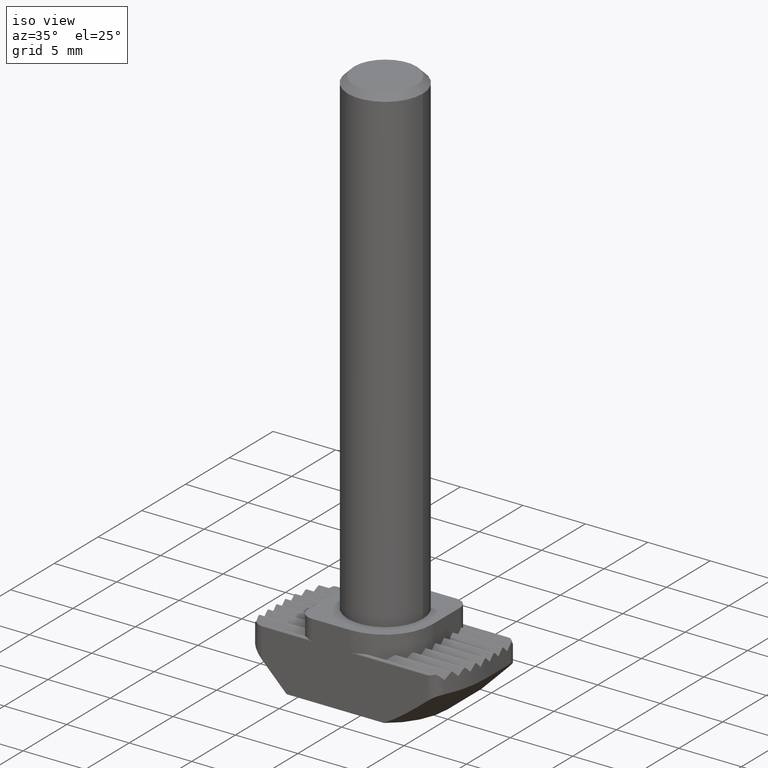
[diagram: clean part render]
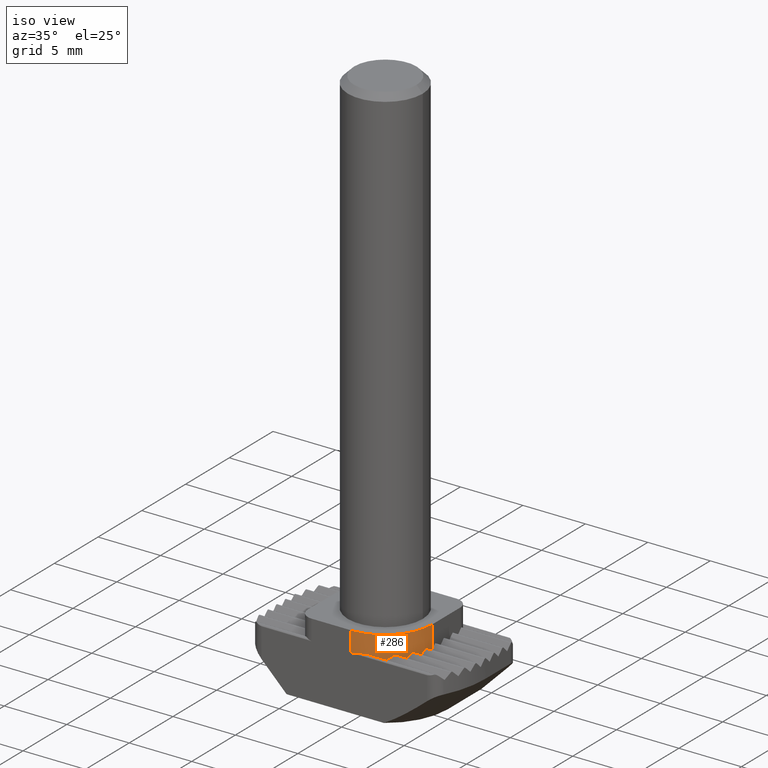
[diagram: same view with one face highlighted and labeled with its STEP entity id]
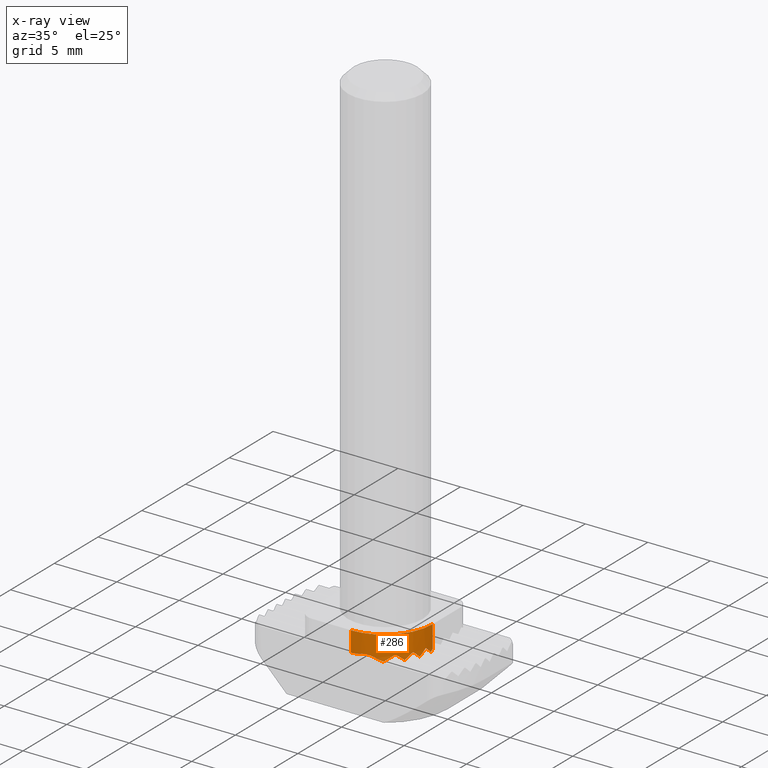
[diagram: x-ray of the same camera — body ghosted, the highlighted face saturated]
A machine part, iso view. The second image highlights one B-rep face of the part: STEP entity #286.
The next image is the same camera in x-ray: the body ghosted, the highlighted face saturated — about 0% of this face is hidden behind the body in this view.
In plain terms, the highlighted cylindrical surface (partial cylindrical patch) has radius 3.85 mm, axis along (0, 0, 1).
Its self-contained STEP definition (entity closure, byte-faithful):
#286=ADVANCED_FACE('NONE',(#584),#585,.T.);
#584=FACE_OUTER_BOUND('',#890,.T.);
#585=CYLINDRICAL_SURFACE('',#891,3.85);
#890=EDGE_LOOP('',(#1712,#1713,#1714,#1715,#1716,#1717,#1718,#1719,#1720,#1721,#1722,#1723,#1724,#1725,#1726,#1727,#1728,#1729,#1730,#1731,#1732));
#891=AXIS2_PLACEMENT_3D('',#1733,#1734,#1735);
#1712=ORIENTED_EDGE('',*,*,#2231,.T.);
#1713=ORIENTED_EDGE('',*,*,#2252,.T.);
#1714=ORIENTED_EDGE('',*,*,#2197,.T.);
#1715=ORIENTED_EDGE('',*,*,#2189,.T.);
#1716=ORIENTED_EDGE('',*,*,#1918,.T.);
#1717=ORIENTED_EDGE('',*,*,#2183,.T.);
#1718=ORIENTED_EDGE('',*,*,#2174,.T.);
#1719=ORIENTED_EDGE('',*,*,#2164,.T.);
#1720=ORIENTED_EDGE('',*,*,#1928,.T.);
#1721=ORIENTED_EDGE('',*,*,#2157,.T.);
#1722=ORIENTED_EDGE('',*,*,#2150,.T.);
#1723=ORIENTED_EDGE('',*,*,#2142,.T.);
#1724=ORIENTED_EDGE('',*,*,#1938,.T.);
#1725=ORIENTED_EDGE('',*,*,#2135,.T.);
#1726=ORIENTED_EDGE('',*,*,#2128,.T.);
#1727=ORIENTED_EDGE('',*,*,#2120,.T.);
#1728=ORIENTED_EDGE('',*,*,#1948,.T.);
#1729=ORIENTED_EDGE('',*,*,#2204,.T.);
#1730=ORIENTED_EDGE('',*,*,#2028,.T.);
#1731=ORIENTED_EDGE('',*,*,#2245,.F.);
#1732=ORIENTED_EDGE('',*,*,#2011,.F.);
#1733=CARTESIAN_POINT('',(0.150000000000001,-0.3,6.0));
#1734=DIRECTION('',(0.0,0.0,1.0));
#1735=DIRECTION('',(-1.0,0.0,0.0));
#1918=EDGE_CURVE('NONE',#2305,#2309,#2311,.T.);
#1928=EDGE_CURVE('NONE',#2323,#2327,#2329,.T.);
#1938=EDGE_CURVE('NONE',#2341,#2345,#2347,.T.);
#1948=EDGE_CURVE('NONE',#2359,#2363,#2365,.T.);
#2011=EDGE_CURVE('NONE',#2476,#2463,#2478,.T.);
#2028=EDGE_CURVE('NONE',#2505,#2502,#2506,.T.);
#2120=EDGE_CURVE('NONE',#2633,#2359,#2634,.T.);
#2128=EDGE_CURVE('NONE',#2645,#2633,#2646,.T.);
#2135=EDGE_CURVE('NONE',#2345,#2645,#2654,.T.);
#2142=EDGE_CURVE('NONE',#2663,#2341,#2664,.T.);
#2150=EDGE_CURVE('NONE',#2675,#2663,#2676,.T.);
#2157=EDGE_CURVE('NONE',#2327,#2675,#2684,.T.);
#2164=EDGE_CURVE('NONE',#2693,#2323,#2694,.T.);
#2174=EDGE_CURVE('NONE',#2709,#2693,#2710,.T.);
#2183=EDGE_CURVE('NONE',#2309,#2709,#2721,.T.);
#2189=EDGE_CURVE('NONE',#2729,#2305,#2730,.T.);
#2197=EDGE_CURVE('NONE',#2741,#2729,#2742,.T.);
#2204=EDGE_CURVE('NONE',#2363,#2505,#2750,.T.);
#2231=EDGE_CURVE('NONE',#2476,#2788,#2790,.T.);
#2245=EDGE_CURVE('NONE',#2463,#2502,#2811,.T.);
#2252=EDGE_CURVE('NONE',#2788,#2741,#2818,.T.);
#2305=VERTEX_POINT('',#2903);
#2309=VERTEX_POINT('NONE',#2913);
#2311=B_SPLINE_CURVE_WITH_KNOTS('',3,(#2916,#2917,#2918,#2919,#2920,#2921,#2922,#2923),.UNSPECIFIED.,.F.,.F.,(4,2,2,4),(0.000663049062288544,0.000931229714029556,0.00106532003990006,0.00119941036577057),.UNSPECIFIED.);
#2323=VERTEX_POINT('',#2947);
#2327=VERTEX_POINT('NONE',#2967);
#2329=B_SPLINE_CURVE_WITH_KNOTS('',3,(#2970,#2971,#2972,#2973,#2974,#2975),.UNSPECIFIED.,.F.,.F.,(4,2,4),(0.00027520329442408,0.000379549242735695,0.00048389519104731),.UNSPECIFIED.);
#2341=VERTEX_POINT('',#2989);
#2345=VERTEX_POINT('NONE',#3009);
#2347=B_SPLINE_CURVE_WITH_KNOTS('',3,(#3012,#3013,#3014,#3015,#3016,#3017,#3018,#3019,#3020,#3021,#3022,#3023,#3024,#3025,#3026,#3027,#3028,#3029,#3030),.UNSPECIFIED.,.F.,.F.,(4,3,3,3,3,3,4),(0.000245763360465609,0.000247398956771095,0.00028164607058281,0.000319721790797091,0.000360746231192919,0.00040217363261927,0.000416564972549524),.UNSPECIFIED.);
#2359=VERTEX_POINT('',#3044);
#2363=VERTEX_POINT('NONE',#3064);
#2365=B_SPLINE_CURVE_WITH_KNOTS('',3,(#3067,#3068,#3069,#3070,#3071,#3072,#3073,#3074,#3075,#3076,#3077,#3078,#3079,#3080,#3081,#3082,#3083,#3084,#3085),.UNSPECIFIED.,.F.,.F.,(4,3,3,3,3,3,4),(0.000236276250915171,0.000236802969481892,0.000270420936097206,0.00030470789615586,0.000339403168050225,0.000374079666317702,0.000394783939890724),.UNSPECIFIED.);
#2463=VERTEX_POINT('NONE',#3339);
#2476=VERTEX_POINT('NONE',#3355);
#2478=CIRCLE('',#3358,3.85);
#2502=VERTEX_POINT('NONE',#3410);
#2505=VERTEX_POINT('NONE',#3414);
#2506=(B_SPLINE_CURVE(3,(#3416,#3417,#3418,#3419),.UNSPECIFIED.,.F.,.F.)B_SPLINE_CURVE_WITH_KNOTS((4,4),(1.51882488192499,1.5707963267949),.UNSPECIFIED.)RATIONAL_B_SPLINE_CURVE((1.0,0.999774926742144,0.999774926742144,1.0))BOUNDED_CURVE()REPRESENTATION_ITEM('')GEOMETRIC_REPRESENTATION_ITEM()CURVE());
#2633=VERTEX_POINT('NONE',#3921);
#2634=B_SPLINE_CURVE_WITH_KNOTS('',3,(#3922,#3923,#3924,#3925,#3926,#3927,#3928,#3929,#3930,#3931,#3932,#3933,#3934,#3935,#3936,#3937,#3938,#3939,#3940),.UNSPECIFIED.,.F.,.F.,(4,3,3,3,3,3,4),(0.000236276250915171,0.000236802969481892,0.000270420936097206,0.00030470789615586,0.000339403168050225,0.000374079666317702,0.000394783939890724),.UNSPECIFIED.);
#2645=VERTEX_POINT('NONE',#3970);
#2646=(B_SPLINE_CURVE(3,(#3972,#3973,#3974,#3975),.UNSPECIFIED.,.F.,.F.)B_SPLINE_CURVE_WITH_KNOTS((4,4),(1.25382698562608,1.36925000424631),.UNSPECIFIED.)RATIONAL_B_SPLINE_CURVE((1.0,0.998890102002906,0.998890102002906,1.0))BOUNDED_CURVE()REPRESENTATION_ITEM('')GEOMETRIC_REPRESENTATION_ITEM()CURVE());
#2654=(B_SPLINE_CURVE(3,(#4003,#4004,#4005,#4006),.UNSPECIFIED.,.F.,.F.)B_SPLINE_CURVE_WITH_KNOTS((4,4),(4.27542348881216,4.39541963921587),.UNSPECIFIED.)RATIONAL_B_SPLINE_CURVE((1.0,0.998800436901309,0.998800436901309,1.0))BOUNDED_CURVE()REPRESENTATION_ITEM('')GEOMETRIC_REPRESENTATION_ITEM()CURVE());
#2663=VERTEX_POINT('NONE',#4032);
#2664=B_SPLINE_CURVE_WITH_KNOTS('',3,(#4033,#4034,#4035,#4036,#4037,#4038,#4039,#4040,#4041,#4042,#4043,#4044,#4045,#4046,#4047,#4048,#4049,#4050,#4051),.UNSPECIFIED.,.F.,.F.,(4,3,3,3,3,3,4),(0.000245763360465609,0.000247398956771095,0.00028164607058281,0.000319721790797091,0.000360746231192919,0.00040217363261927,0.000416564972549524),.UNSPECIFIED.);
#2675=VERTEX_POINT('NONE',#4081);
#2676=(B_SPLINE_CURVE(3,(#4083,#4084,#4085,#4086),.UNSPECIFIED.,.F.,.F.)B_SPLINE_CURVE_WITH_KNOTS((4,4),(0.962550747884687,1.09288576088371),.UNSPECIFIED.)RATIONAL_B_SPLINE_CURVE((1.0,0.998584899609726,0.998584899609726,1.0))BOUNDED_CURVE()REPRESENTATION_ITEM('')GEOMETRIC_REPRESENTATION_ITEM()CURVE());
#2684=(B_SPLINE_CURVE(3,(#4114,#4115,#4116,#4117),.UNSPECIFIED.,.F.,.F.)B_SPLINE_CURVE_WITH_KNOTS((4,4),(3.96061965048316,4.10414340147448),.UNSPECIFIED.)RATIONAL_B_SPLINE_CURVE((1.0,0.998284147618055,0.998284147618055,1.0))BOUNDED_CURVE()REPRESENTATION_ITEM('')GEOMETRIC_REPRESENTATION_ITEM()CURVE());
#2693=VERTEX_POINT('NONE',#4143);
#2694=B_SPLINE_CURVE_WITH_KNOTS('',3,(#4144,#4145,#4146,#4147,#4148,#4149),.UNSPECIFIED.,.F.,.F.,(4,2,4),(0.00027520329442408,0.000379549242735695,0.00048389519104731),.UNSPECIFIED.);
#2709=VERTEX_POINT('NONE',#4203);
#2710=(B_SPLINE_CURVE(3,(#4205,#4206,#4207,#4208),.UNSPECIFIED.,.F.,.F.)B_SPLINE_CURVE_WITH_KNOTS((4,4),(0.589589795158114,0.767476453877839),.UNSPECIFIED.)RATIONAL_B_SPLINE_CURVE((1.0,0.997364766001041,0.997364766001041,1.0))BOUNDED_CURVE()REPRESENTATION_ITEM('')GEOMETRIC_REPRESENTATION_ITEM()CURVE());
#2721=(B_SPLINE_CURVE(3,(#4277,#4278,#4279,#4280),.UNSPECIFIED.,.F.,.F.)B_SPLINE_CURVE_WITH_KNOTS((4,4),(3.48183879754508,3.73118244874791),.UNSPECIFIED.)RATIONAL_B_SPLINE_CURVE((1.0,0.994825685903449,0.994825685903449,1.0))BOUNDED_CURVE()REPRESENTATION_ITEM('')GEOMETRIC_REPRESENTATION_ITEM()CURVE());
#2729=VERTEX_POINT('NONE',#4305);
#2730=B_SPLINE_CURVE_WITH_KNOTS('',3,(#4306,#4307,#4308,#4309,#4310,#4311,#4312,#4313),.UNSPECIFIED.,.F.,.F.,(4,2,2,4),(0.000663049062288544,0.000931229714029556,0.00106532003990006,0.00119941036577057),.UNSPECIFIED.);
#2741=VERTEX_POINT('NONE',#4351);
#2742=(B_SPLINE_CURVE(3,(#4353,#4354,#4355,#4356),.UNSPECIFIED.,.F.,.F.)B_SPLINE_CURVE_WITH_KNOTS((4,4),(0.0872493206646789,0.203301301822323),.UNSPECIFIED.)RATIONAL_B_SPLINE_CURVE((1.0,0.99887797634805,0.99887797634805,1.0))BOUNDED_CURVE()REPRESENTATION_ITEM('')GEOMETRIC_REPRESENTATION_ITEM()CURVE());
#2750=(B_SPLINE_CURVE(3,(#4384,#4385,#4386,#4387),.UNSPECIFIED.,.F.,.F.)B_SPLINE_CURVE_WITH_KNOTS((4,4),(4.54820050733009,4.66041753551478),.UNSPECIFIED.)RATIONAL_B_SPLINE_CURVE((1.0,0.998950886823925,0.998950886823925,1.0))BOUNDED_CURVE()REPRESENTATION_ITEM('')GEOMETRIC_REPRESENTATION_ITEM()CURVE());
#2788=VERTEX_POINT('NONE',#4461);
#2790=LINE('',#4464,#4465);
#2811=LINE('',#4499,#4500);
#2818=B_SPLINE_CURVE_WITH_KNOTS('',3,(#4516,#4517,#4518,#4519,#4520,#4521,#4522,#4523,#4524,#4525),.UNSPECIFIED.,.F.,.F.,(4,3,3,4),(-1.24096893541193E-005,0.0,0.000225318457882308,0.000325294553830855),.UNSPECIFIED.);
#2903=CARTESIAN_POINT('',(1.21418983268967,-4.0,4.5));
#2913=CARTESIAN_POINT('',(1.43481867128324,-3.92928932188135,4.47071067811865));
#2916=CARTESIAN_POINT('',(0.927329390877476,-4.07071067811865,4.47071067811865));
#2917=CARTESIAN_POINT('',(1.01244485302411,-4.05316418463438,4.48825717160293));
#2918=CARTESIAN_POINT('',(1.09849999513143,-4.03237568117422,4.49755369408038));
#2919=CARTESIAN_POINT('',(1.22595438710376,-3.9968591092194,4.50065466603769));
#2920=CARTESIAN_POINT('',(1.26831660665736,-3.98426850821036,4.49973843165402));
#2921=CARTESIAN_POINT('',(1.35288068365388,-3.95753257459296,4.49160650829514));
#2922=CARTESIAN_POINT('',(1.39507283913445,-3.94335989678497,4.48478125302228));
#2923=CARTESIAN_POINT('',(1.43481867128324,-3.92928932188135,4.47071067811865));
#2947=CARTESIAN_POINT('',(2.89454001520624,-3.0000000097159,4.5));
#2967=CARTESIAN_POINT('',(2.96235446945095,-2.92928932188135,4.47071067811865));
#2970=CARTESIAN_POINT('',(2.82313717159432,-3.07071067811865,4.47071067811865));
#2971=CARTESIAN_POINT('',(2.84381204260352,-3.05076389455553,4.49065746168203));
#2972=CARTESIAN_POINT('',(2.86924621701802,-3.02569565540673,4.49978855926078));
#2973=CARTESIAN_POINT('',(2.91818759598806,-2.97597724730383,4.50020444410814));
#2974=CARTESIAN_POINT('',(2.94306522537807,-2.94992158601809,4.49134294225638));
#2975=CARTESIAN_POINT('',(2.96235446945095,-2.92928932188135,4.47071067811865));
#2989=CARTESIAN_POINT('',(3.60434508988318,-1.99999999999999,4.5));
#3009=CARTESIAN_POINT('',(3.6382540483175,-1.92928932188135,4.47071067811865));
#3012=CARTESIAN_POINT('',(3.56863769569057,-2.07071067811865,4.47071067811865));
#3013=CARTESIAN_POINT('',(3.56882805924121,-2.07034315110358,4.47107820513373));
#3014=CARTESIAN_POINT('',(3.56901967077456,-2.06997306952415,4.47144255563288));
#3015=CARTESIAN_POINT('',(3.56921248692766,-2.06960051120142,4.47180368264974));
#3016=CARTESIAN_POINT('',(3.57320660812219,-2.06188309194426,4.47928430628396));
#3017=CARTESIAN_POINT('',(3.57776859292037,-2.05300121381055,4.48543781598051));
#3018=CARTESIAN_POINT('',(3.58253537686272,-2.04361718464401,4.48998633898393));
#3019=CARTESIAN_POINT('',(3.58782791560122,-2.03319813933217,4.49503654358512));
#3020=CARTESIAN_POINT('',(3.59350402076895,-2.02190031100139,4.49823818780398));
#3021=CARTESIAN_POINT('',(3.59913490640579,-2.01054622779192,4.49944233042));
#3022=CARTESIAN_POINT('',(3.60519087395459,-1.99833501202629,4.50073737512115));
#3023=CARTESIAN_POINT('',(3.61136059930375,-1.98572229321494,4.4997506328347));
#3024=CARTESIAN_POINT('',(3.61714194968592,-1.97374630715893,4.49649219456622));
#3025=CARTESIAN_POINT('',(3.62297069698722,-1.96167213905111,4.49320704282686));
#3026=CARTESIAN_POINT('',(3.62858061859711,-1.94988073850978,4.48749349944796));
#3027=CARTESIAN_POINT('',(3.63342821950618,-1.93958160502856,4.47968448750588));
#3028=CARTESIAN_POINT('',(3.6351235278809,-1.93597978062704,4.4769535111751));
#3029=CARTESIAN_POINT('',(3.63674006153266,-1.93253071704695,4.47395207328429));
#3030=CARTESIAN_POINT('',(3.6382540483175,-1.92928932188135,4.47071067811865));
#3044=CARTESIAN_POINT('',(3.93582882538615,-1.00000003745547,4.49999999999997));
#3064=CARTESIAN_POINT('',(3.94822260397756,-0.929289321881346,4.47071067811865));
#3067=CARTESIAN_POINT('',(3.9220690675853,-1.07071067811865,4.47071067811865));
#3068=CARTESIAN_POINT('',(3.92209452799005,-1.07058606792719,4.47083528831012));
#3069=CARTESIAN_POINT('',(3.9221200481082,-1.07046113399919,4.47095956344909));
#3070=CARTESIAN_POINT('',(3.92214562729023,-1.07033587902628,4.47108350105053));
#3071=CARTESIAN_POINT('',(3.9237565365314,-1.06244765206519,4.47888876344007));
#3072=CARTESIAN_POINT('',(3.92562859226699,-1.05314788404837,4.48542368249223));
#3073=CARTESIAN_POINT('',(3.92758771574185,-1.04318978052464,4.4901922549792));
#3074=CARTESIAN_POINT('',(3.92958516286659,-1.03303688025748,4.49505410852004));
#3075=CARTESIAN_POINT('',(3.93172649617427,-1.02192378906559,4.4982122768748));
#3076=CARTESIAN_POINT('',(3.93382529172833,-1.01075042151028,4.49942046287033));
#3077=CARTESIAN_POINT('',(3.93594833592112,-0.99944796136532,4.50064260776036));
#3078=CARTESIAN_POINT('',(3.93808623158592,-0.987771324323178,4.4999014121494));
#3079=CARTESIAN_POINT('',(3.94006458995902,-0.976690774237937,4.49724546259015));
#3080=CARTESIAN_POINT('',(3.94204149600272,-0.965618358477075,4.49459146278567));
#3081=CARTESIAN_POINT('',(3.94391480995444,-0.954831838813837,4.48994852978075));
#3082=CARTESIAN_POINT('',(3.94554252878512,-0.945257244967843,4.4836853079787));
#3083=CARTESIAN_POINT('',(3.94651666911786,-0.939527141058457,4.47993695976565));
#3084=CARTESIAN_POINT('',(3.94741785691492,-0.934146560638688,4.475567916876));
#3085=CARTESIAN_POINT('',(3.94822260397756,-0.929289321881346,4.47071067811865));
#3339=CARTESIAN_POINT('',(4.0,-0.299999999999999,6.0));
#3355=CARTESIAN_POINT('',(0.150000000000001,-4.15,6.0));
#3358=AXIS2_PLACEMENT_3D('',#4740,#4741,#4742);
#3410=CARTESIAN_POINT('',(4.0,-0.299999999999999,4.24142135623731));
#3414=CARTESIAN_POINT('',(3.99480168539289,-0.500000000000001,4.04142135623731));
#3416=CARTESIAN_POINT('',(3.99480168539289,-0.500000000000001,4.04142135623731));
#3417=CARTESIAN_POINT('',(3.99826683837596,-0.43338586985266,4.10803548638465));
#3418=CARTESIAN_POINT('',(4.0,-0.366704194924178,4.17471716131313));
#3419=CARTESIAN_POINT('',(4.0,-0.299999999999999,4.24142135623731));
#3921=CARTESIAN_POINT('',(3.9220690675853,-1.07071067811865,4.47071067811865));
#3922=CARTESIAN_POINT('',(3.9220690675853,-1.07071067811865,4.47071067811865));
#3923=CARTESIAN_POINT('',(3.92209452799005,-1.07058606792719,4.47083528831012));
#3924=CARTESIAN_POINT('',(3.9221200481082,-1.07046113399919,4.47095956344909));
#3925=CARTESIAN_POINT('',(3.92214562729023,-1.07033587902628,4.47108350105053));
#3926=CARTESIAN_POINT('',(3.9237565365314,-1.06244765206519,4.47888876344007));
#3927=CARTESIAN_POINT('',(3.92562859226699,-1.05314788404837,4.48542368249223));
#3928=CARTESIAN_POINT('',(3.92758771574185,-1.04318978052464,4.4901922549792));
#3929=CARTESIAN_POINT('',(3.92958516286659,-1.03303688025748,4.49505410852004));
#3930=CARTESIAN_POINT('',(3.93172649617427,-1.02192378906559,4.4982122768748));
#3931=CARTESIAN_POINT('',(3.93382529172833,-1.01075042151028,4.49942046287033));
#3932=CARTESIAN_POINT('',(3.93594833592112,-0.99944796136532,4.50064260776036));
#3933=CARTESIAN_POINT('',(3.93808623158592,-0.987771324323178,4.4999014121494));
#3934=CARTESIAN_POINT('',(3.94006458995902,-0.976690774237937,4.49724546259015));
#3935=CARTESIAN_POINT('',(3.94204149600272,-0.965618358477075,4.49459146278567));
#3936=CARTESIAN_POINT('',(3.94391480995444,-0.954831838813837,4.48994852978075));
#3937=CARTESIAN_POINT('',(3.94554252878512,-0.945257244967843,4.4836853079787));
#3938=CARTESIAN_POINT('',(3.94651666911786,-0.939527141058457,4.47993695976565));
#3939=CARTESIAN_POINT('',(3.94741785691492,-0.934146560638688,4.475567916876));
#3940=CARTESIAN_POINT('',(3.94822260397756,-0.929289321881346,4.47071067811865));
#3970=CARTESIAN_POINT('',(3.80820994476807,-1.5,4.04142135623731));
#3972=CARTESIAN_POINT('',(3.80820994476807,-1.5,4.04142135623731));
#3973=CARTESIAN_POINT('',(3.85440479939249,-1.35917460284652,4.18224675339079));
#3974=CARTESIAN_POINT('',(3.89240001114099,-1.21591916329397,4.32550219294334));
#3975=CARTESIAN_POINT('',(3.9220690675853,-1.07071067811865,4.47071067811865));
#4003=CARTESIAN_POINT('',(3.6382540483175,-1.92928932188135,4.47071067811865));
#4004=CARTESIAN_POINT('',(3.70346266019145,-1.78967986068889,4.3311012169262));
#4005=CARTESIAN_POINT('',(3.76018266489958,-1.6464115606959,4.18783291693321));
#4006=CARTESIAN_POINT('',(3.80820994476807,-1.5,4.04142135623731));
#4032=CARTESIAN_POINT('',(3.56863769569057,-2.07071067811865,4.47071067811865));
#4033=CARTESIAN_POINT('',(3.56863769569057,-2.07071067811865,4.47071067811865));
#4034=CARTESIAN_POINT('',(3.56882805924121,-2.07034315110358,4.47107820513373));
#4035=CARTESIAN_POINT('',(3.56901967077456,-2.06997306952415,4.47144255563288));
#4036=CARTESIAN_POINT('',(3.56921248692766,-2.06960051120142,4.47180368264974));
#4037=CARTESIAN_POINT('',(3.57320660812219,-2.06188309194426,4.47928430628396));
#4038=CARTESIAN_POINT('',(3.57776859292037,-2.05300121381055,4.48543781598051));
#4039=CARTESIAN_POINT('',(3.58253537686272,-2.04361718464401,4.48998633898393));
#4040=CARTESIAN_POINT('',(3.58782791560122,-2.03319813933217,4.49503654358512));
#4041=CARTESIAN_POINT('',(3.59350402076895,-2.02190031100139,4.49823818780398));
#4042=CARTESIAN_POINT('',(3.59913490640579,-2.01054622779192,4.49944233042));
#4043=CARTESIAN_POINT('',(3.60519087395459,-1.99833501202629,4.50073737512115));
#4044=CARTESIAN_POINT('',(3.61136059930375,-1.98572229321494,4.4997506328347));
#4045=CARTESIAN_POINT('',(3.61714194968592,-1.97374630715893,4.49649219456622));
#4046=CARTESIAN_POINT('',(3.62297069698722,-1.96167213905111,4.49320704282686));
#4047=CARTESIAN_POINT('',(3.62858061859711,-1.94988073850978,4.48749349944796));
#4048=CARTESIAN_POINT('',(3.63342821950618,-1.93958160502856,4.47968448750588));
#4049=CARTESIAN_POINT('',(3.6351235278809,-1.93597978062704,4.4769535111751));
#4050=CARTESIAN_POINT('',(3.63674006153266,-1.93253071704695,4.47395207328429));
#4051=CARTESIAN_POINT('',(3.6382540483175,-1.92928932188135,4.47071067811865));
#4081=CARTESIAN_POINT('',(3.30950945559592,-2.5,4.04142135623731));
#4083=CARTESIAN_POINT('',(3.30950945559592,-2.5,4.04142135623731));
#4084=CARTESIAN_POINT('',(3.40515617832162,-2.36263785234154,4.17878350389577));
#4085=CARTESIAN_POINT('',(3.49165466239174,-2.21933862892744,4.32208272730986));
#4086=CARTESIAN_POINT('',(3.56863769569057,-2.07071067811865,4.47071067811865));
#4114=CARTESIAN_POINT('',(2.96235446945095,-2.92928932188135,4.47071067811865));
#4115=CARTESIAN_POINT('',(3.08825104225727,-2.79462715812712,4.33604851436443));
#4116=CARTESIAN_POINT('',(3.20416826781985,-2.65128476311008,4.19270611934739));
#4117=CARTESIAN_POINT('',(3.30950945559592,-2.5,4.04142135623731));
#4143=CARTESIAN_POINT('',(2.82313717159432,-3.07071067811865,4.47071067811865));
#4144=CARTESIAN_POINT('',(2.82313717159432,-3.07071067811865,4.47071067811865));
#4145=CARTESIAN_POINT('',(2.84381204260352,-3.05076389455553,4.49065746168203));
#4146=CARTESIAN_POINT('',(2.86924621701802,-3.02569565540673,4.49978855926078));
#4147=CARTESIAN_POINT('',(2.91818759598806,-2.97597724730383,4.50020444410814));
#4148=CARTESIAN_POINT('',(2.94306522537807,-2.94992158601809,4.49134294225638));
#4149=CARTESIAN_POINT('',(2.96235446945095,-2.92928932188135,4.47071067811865));
#4203=CARTESIAN_POINT('',(2.29067746286076,-3.5,4.04142135623731));
#4205=CARTESIAN_POINT('',(2.29067746286076,-3.5,4.04142135623731));
#4206=CARTESIAN_POINT('',(2.48067383887418,-3.37289969995089,4.16852165628642));
#4207=CARTESIAN_POINT('',(2.65862936289925,-3.22942517036543,4.31199618587188));
#4208=CARTESIAN_POINT('',(2.82313717159432,-3.07071067811865,4.47071067811865));
#4277=CARTESIAN_POINT('',(1.43481867128324,-3.92928932188135,4.47071067811865));
#4278=CARTESIAN_POINT('',(1.73724948147938,-3.82222462759847,4.36364598383578));
#4279=CARTESIAN_POINT('',(2.02401958392209,-3.67838390991821,4.21980526615552));
#4280=CARTESIAN_POINT('',(2.29067746286076,-3.5,4.04142135623731));
#4305=CARTESIAN_POINT('',(0.927329390877476,-4.07071067811865,4.47071067811865));
#4306=CARTESIAN_POINT('',(0.927329390877476,-4.07071067811865,4.47071067811865));
#4307=CARTESIAN_POINT('',(1.01244485302411,-4.05316418463438,4.48825717160293));
#4308=CARTESIAN_POINT('',(1.09849999513143,-4.03237568117422,4.49755369408038));
#4309=CARTESIAN_POINT('',(1.22595438710376,-3.9968591092194,4.50065466603769));
#4310=CARTESIAN_POINT('',(1.26831660665736,-3.98426850821036,4.49973843165402));
#4311=CARTESIAN_POINT('',(1.35288068365388,-3.95753257459296,4.49160650829514));
#4312=CARTESIAN_POINT('',(1.39507283913445,-3.94335989678497,4.48478125302228));
#4313=CARTESIAN_POINT('',(1.43481867128324,-3.92928932188135,4.47071067811865));
#4351=CARTESIAN_POINT('',(0.48548386421571,-4.13535533905933,4.40606601717798));
#4353=CARTESIAN_POINT('',(0.48548386421571,-4.13535533905933,4.40606601717798));
#4354=CARTESIAN_POINT('',(0.633934045770628,-4.12237019527242,4.41905116096489));
#4355=CARTESIAN_POINT('',(0.78138132732854,-4.10079777018769,4.44062358604962));
#4356=CARTESIAN_POINT('',(0.927329390877476,-4.07071067811865,4.47071067811865));
#4384=CARTESIAN_POINT('',(3.94822260397756,-0.929289321881346,4.47071067811865));
#4385=CARTESIAN_POINT('',(3.97177395570479,-0.787139640686808,4.32856099692412));
#4386=CARTESIAN_POINT('',(3.98731662219277,-0.643892918035529,4.18531427427284));
#4387=CARTESIAN_POINT('',(3.99480168539289,-0.500000000000001,4.04142135623731));
#4461=CARTESIAN_POINT('',(0.150000000000001,-4.15,4.37071067811865));
#4464=CARTESIAN_POINT('',(0.150000000000001,-4.15,6.0));
#4465=VECTOR('',#4870,1000.0);
#4499=CARTESIAN_POINT('',(4.0,-0.299999999999999,6.0));
#4500=VECTOR('',#4885,1000.0);
#4516=CARTESIAN_POINT('',(0.150000000000001,-4.15,4.37071067811865));
#4517=CARTESIAN_POINT('',(0.15410996628003,-4.15,4.37117900664282));
#4518=CARTESIAN_POINT('',(0.158219927486274,-4.14999341878679,4.37164742594493));
#4519=CARTESIAN_POINT('',(0.16232988323506,-4.14998025631034,4.37211566191296));
#4520=CARTESIAN_POINT('',(0.236952935017865,-4.14974126975615,4.38061726120624));
#4521=CARTESIAN_POINT('',(0.311608039842509,-4.14733241058116,4.38908883563422));
#4522=CARTESIAN_POINT('',(0.386192357211549,-4.1427481273686,4.39664516493599));
#4523=CARTESIAN_POINT('',(0.419297747676134,-4.14071332312146,4.39999915731453));
#4524=CARTESIAN_POINT('',(0.45239902826529,-4.13824931566133,4.40317204057598));
#4525=CARTESIAN_POINT('',(0.48548386421571,-4.13535533905933,4.40606601717798));
#4740=CARTESIAN_POINT('',(0.150000000000001,-0.3,6.0));
#4741=DIRECTION('',(0.0,0.0,1.0));
#4742=DIRECTION('',(-1.0,0.0,0.0));
#4870=DIRECTION('',(-0.0,-0.0,-1.0));
#4885=DIRECTION('',(-0.0,-0.0,-1.0));